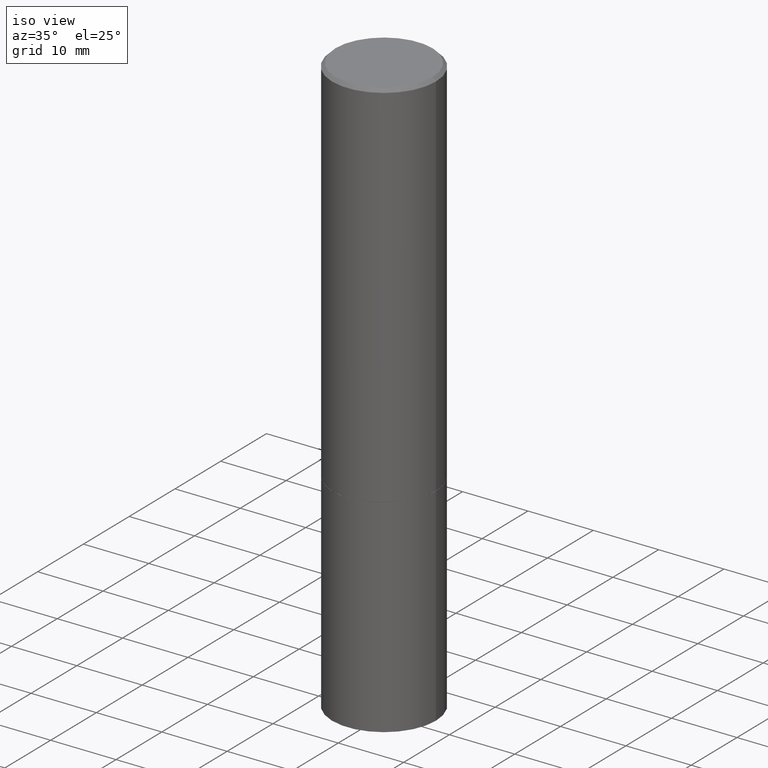
[diagram: clean part render]
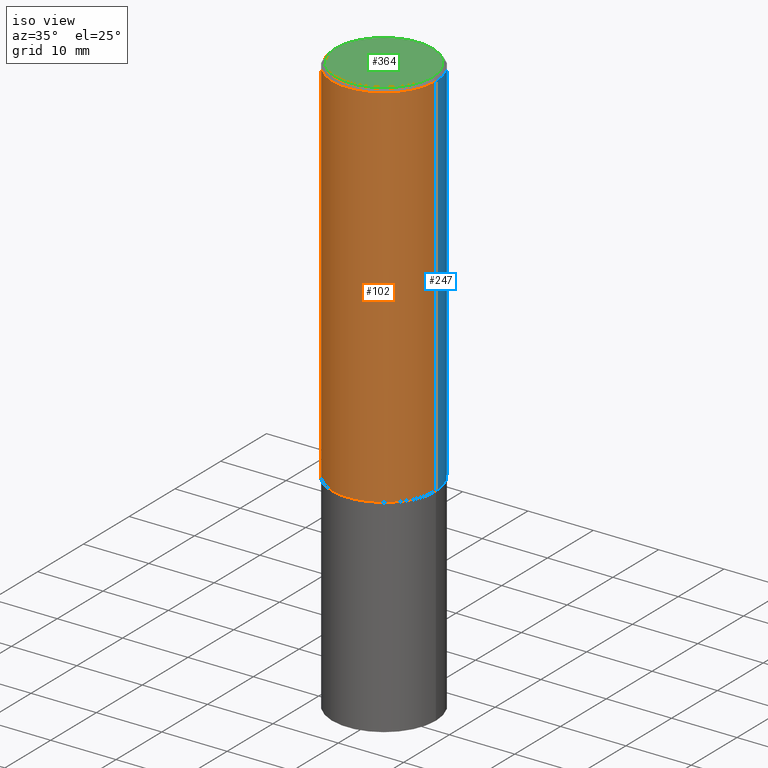
[diagram: same view with three faces highlighted in distinct colors, each labeled with its STEP entity id]
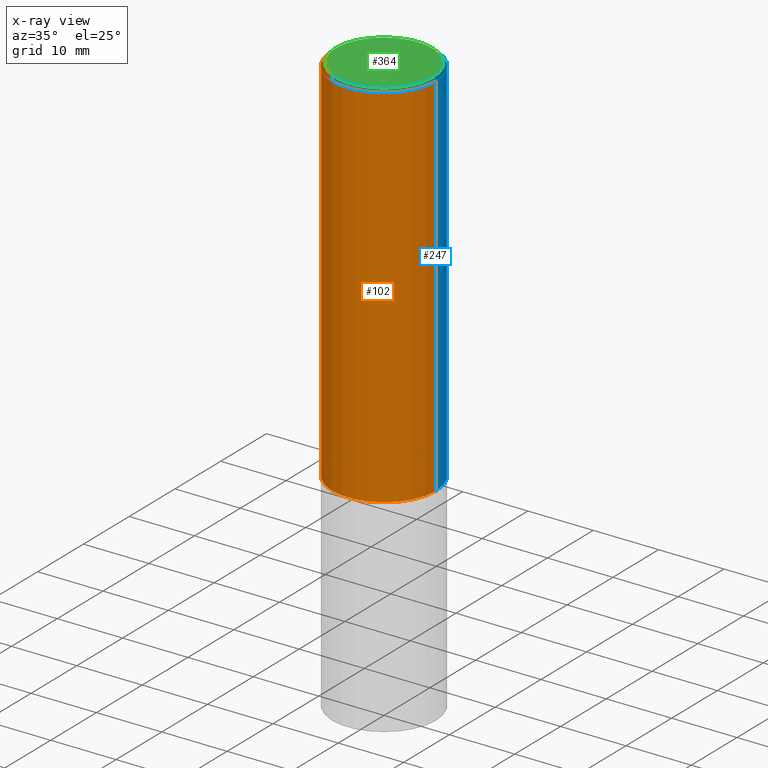
[diagram: x-ray of the same camera — body ghosted, the three highlighted faces saturated]
A machine part, iso view with three faces highlighted in distinct colors.
The next image is the same camera in x-ray (body ghosted, the three faces saturated) — at least one of them is partly hidden behind the body in this view.
Their STEP definitions:

[orange] entity #102 — the highlighted cylindrical surface (partial cylindrical patch) has radius 7.9375 mm, axis along (-0, 0, 1).
#13 = CARTESIAN_POINT ( 'NONE',  ( -0.3124999999999998890, 2.220446049250312292E-15, -1.537167215704657391E-29 ) ) ;
#16 = AXIS2_PLACEMENT_3D ( 'NONE', #283, #130, #305 ) ;
#34 = CARTESIAN_POINT ( 'NONE',  ( 5.499859345110370619E-29, -7.852341531058232286E-15, -2.248999999999999222 ) ) ;
#44 = CARTESIAN_POINT ( 'NONE',  ( 0.3124999999999998890, -2.182175836776957558E-15, 1.523805242436229235E-29 ) ) ;
#57 = EDGE_CURVE ( 'NONE', #126, #388, #228, .T. ) ;
#62 = DIRECTION ( 'NONE',  ( -2.445468806185136597E-29, 3.491481338843145583E-15, 1.000000000000000000 ) ) ;
#74 = LINE ( 'NONE', #13, #304 ) ;
#77 = ORIENTED_EDGE ( 'NONE', *, *, #211, .T. ) ;
#80 = EDGE_LOOP ( 'NONE', ( #322, #204, #77, #348 ) ) ;
#102 = ADVANCED_FACE ( 'NONE', ( #306 ), #158, .T. ) ;
#126 = VERTEX_POINT ( 'NONE', #153 ) ;
#130 = DIRECTION ( 'NONE',  ( -2.445468806185136597E-29, 3.491481338843145583E-15, 1.000000000000000000 ) ) ;
#133 = LINE ( 'NONE', #44, #243 ) ;
#135 = DIRECTION ( 'NONE',  ( -2.445468806185136597E-29, 3.491481338843145583E-15, 1.000000000000000000 ) ) ;
#140 = CARTESIAN_POINT ( 'NONE',  ( -0.3124999999999998335, 2.112346210000093866E-15, -0.02000000000000006981 ) ) ;
#146 = CARTESIAN_POINT ( 'NONE',  ( 0.3125000000000000000, -1.003451736783519063E-14, -2.248999999999999222 ) ) ;
#153 = CARTESIAN_POINT ( 'NONE',  ( -0.3125000000000000000, -1.740639529667232739E-15, -2.248999999999999222 ) ) ;
#158 = CYLINDRICAL_SURFACE ( 'NONE', #16, 0.3124999999999998890 ) ;
#182 = AXIS2_PLACEMENT_3D ( 'NONE', #34, #62, #307 ) ;
#195 = DIRECTION ( 'NONE',  ( -2.445468806185136877E-29, 3.491481338843145188E-15, 1.000000000000000000 ) ) ;
#196 = VERTEX_POINT ( 'NONE', #224 ) ;
#201 = VERTEX_POINT ( 'NONE', #140 ) ;
#204 = ORIENTED_EDGE ( 'NONE', *, *, #57, .T. ) ;
#211 = EDGE_CURVE ( 'NONE', #388, #196, #133, .T. ) ;
#223 = EDGE_CURVE ( 'NONE', #126, #201, #74, .T. ) ;
#224 = CARTESIAN_POINT ( 'NONE',  ( 0.3124999999999998335, -2.213735251080465334E-15, -0.02000000000000006981 ) ) ;
#228 = CIRCLE ( 'NONE', #182, 0.3125000000000000000 ) ;
#243 = VECTOR ( 'NONE', #323, 39.37007874015748143 ) ;
#283 = CARTESIAN_POINT ( 'NONE',  ( 0.000000000000000000, 0.000000000000000000, 0.000000000000000000 ) ) ;
#291 = CARTESIAN_POINT ( 'NONE',  ( 4.890937612370289799E-31, -6.982962677686315028E-17, -0.02000000000000006981 ) ) ;
#304 = VECTOR ( 'NONE', #195, 39.37007874015748143 ) ;
#305 = DIRECTION ( 'NONE',  ( 1.000000000000000000, -6.982962677686266711E-15, 4.876176775795935232E-29 ) ) ;
#306 = FACE_OUTER_BOUND ( 'NONE', #80, .T. ) ;
#307 = DIRECTION ( 'NONE',  ( 1.000000000000000000, -6.982962677686269077E-15, 0.000000000000000000 ) ) ;
#311 = AXIS2_PLACEMENT_3D ( 'NONE', #291, #135, #352 ) ;
#317 = EDGE_CURVE ( 'NONE', #201, #196, #368, .T. ) ;
#322 = ORIENTED_EDGE ( 'NONE', *, *, #223, .F. ) ;
#323 = DIRECTION ( 'NONE',  ( -2.445468806185136877E-29, 3.491481338843145188E-15, 1.000000000000000000 ) ) ;
#348 = ORIENTED_EDGE ( 'NONE', *, *, #317, .F. ) ;
#352 = DIRECTION ( 'NONE',  ( 1.000000000000000000, -6.982962677686265133E-15, 0.000000000000000000 ) ) ;
#368 = CIRCLE ( 'NONE', #311, 0.3124999999999998335 ) ;
#388 = VERTEX_POINT ( 'NONE', #146 ) ;

[blue] entity #247 — the highlighted cylindrical surface (partial cylindrical patch) has radius 7.9375 mm, axis along (-0, 0, 1).
#10 = AXIS2_PLACEMENT_3D ( 'NONE', #362, #41, #334 ) ;
#13 = CARTESIAN_POINT ( 'NONE',  ( -0.3124999999999998890, 2.220446049250312292E-15, -1.537167215704657391E-29 ) ) ;
#15 = FACE_OUTER_BOUND ( 'NONE', #327, .T. ) ;
#18 = CARTESIAN_POINT ( 'NONE',  ( 0.000000000000000000, 0.000000000000000000, 0.000000000000000000 ) ) ;
#33 = EDGE_CURVE ( 'NONE', #196, #201, #96, .T. ) ;
#41 = DIRECTION ( 'NONE',  ( -2.445468806185136597E-29, 3.491481338843145583E-15, 1.000000000000000000 ) ) ;
#44 = CARTESIAN_POINT ( 'NONE',  ( 0.3124999999999998890, -2.182175836776957558E-15, 1.523805242436229235E-29 ) ) ;
#46 = DIRECTION ( 'NONE',  ( 1.000000000000000000, -6.982962677686269077E-15, 0.000000000000000000 ) ) ;
#74 = LINE ( 'NONE', #13, #304 ) ;
#96 = CIRCLE ( 'NONE', #10, 0.3124999999999998335 ) ;
#107 = DIRECTION ( 'NONE',  ( -2.445468806185136597E-29, 3.491481338843145583E-15, 1.000000000000000000 ) ) ;
#126 = VERTEX_POINT ( 'NONE', #153 ) ;
#133 = LINE ( 'NONE', #44, #243 ) ;
#140 = CARTESIAN_POINT ( 'NONE',  ( -0.3124999999999998335, 2.112346210000093866E-15, -0.02000000000000006981 ) ) ;
#146 = CARTESIAN_POINT ( 'NONE',  ( 0.3125000000000000000, -1.003451736783519063E-14, -2.248999999999999222 ) ) ;
#153 = CARTESIAN_POINT ( 'NONE',  ( -0.3125000000000000000, -1.740639529667232739E-15, -2.248999999999999222 ) ) ;
#195 = DIRECTION ( 'NONE',  ( -2.445468806185136877E-29, 3.491481338843145188E-15, 1.000000000000000000 ) ) ;
#196 = VERTEX_POINT ( 'NONE', #224 ) ;
#201 = VERTEX_POINT ( 'NONE', #140 ) ;
#211 = EDGE_CURVE ( 'NONE', #388, #196, #133, .T. ) ;
#213 = AXIS2_PLACEMENT_3D ( 'NONE', #375, #262, #46 ) ;
#223 = EDGE_CURVE ( 'NONE', #126, #201, #74, .T. ) ;
#224 = CARTESIAN_POINT ( 'NONE',  ( 0.3124999999999998335, -2.213735251080465334E-15, -0.02000000000000006981 ) ) ;
#236 = ORIENTED_EDGE ( 'NONE', *, *, #33, .F. ) ;
#243 = VECTOR ( 'NONE', #323, 39.37007874015748143 ) ;
#247 = ADVANCED_FACE ( 'NONE', ( #15 ), #294, .T. ) ;
#262 = DIRECTION ( 'NONE',  ( -2.445468806185136597E-29, 3.491481338843145583E-15, 1.000000000000000000 ) ) ;
#268 = ORIENTED_EDGE ( 'NONE', *, *, #211, .F. ) ;
#275 = EDGE_CURVE ( 'NONE', #388, #126, #290, .T. ) ;
#278 = ORIENTED_EDGE ( 'NONE', *, *, #223, .T. ) ;
#290 = CIRCLE ( 'NONE', #213, 0.3125000000000000000 ) ;
#294 = CYLINDRICAL_SURFACE ( 'NONE', #335, 0.3124999999999998890 ) ;
#304 = VECTOR ( 'NONE', #195, 39.37007874015748143 ) ;
#316 = DIRECTION ( 'NONE',  ( 1.000000000000000000, -6.982962677686266711E-15, 4.876176775795935232E-29 ) ) ;
#323 = DIRECTION ( 'NONE',  ( -2.445468806185136877E-29, 3.491481338843145188E-15, 1.000000000000000000 ) ) ;
#327 = EDGE_LOOP ( 'NONE', ( #339, #278, #236, #268 ) ) ;
#334 = DIRECTION ( 'NONE',  ( 1.000000000000000000, -6.982962677686265133E-15, 0.000000000000000000 ) ) ;
#335 = AXIS2_PLACEMENT_3D ( 'NONE', #18, #107, #316 ) ;
#339 = ORIENTED_EDGE ( 'NONE', *, *, #275, .T. ) ;
#362 = CARTESIAN_POINT ( 'NONE',  ( 4.890937612370289799E-31, -6.982962677686315028E-17, -0.02000000000000006981 ) ) ;
#375 = CARTESIAN_POINT ( 'NONE',  ( 5.499859345110370619E-29, -7.852341531058232286E-15, -2.248999999999999222 ) ) ;
#388 = VERTEX_POINT ( 'NONE', #146 ) ;

[green] entity #364 — the highlighted planar face has unit normal (0, -0, -1).
#21 = DIRECTION ( 'NONE',  ( 2.438088387897960049E-29, -3.491481338843145188E-15, -1.000000000000000000 ) ) ;
#29 = PLANE ( 'NONE',  #178 ) ;
#31 = AXIS2_PLACEMENT_3D ( 'NONE', #162, #197, #259 ) ;
#53 = ORIENTED_EDGE ( 'NONE', *, *, #170, .T. ) ;
#55 = DIRECTION ( 'NONE',  ( -1.000000000000000000, 6.982962677686265922E-15, -4.876176775795935793E-29 ) ) ;
#58 = CARTESIAN_POINT ( 'NONE',  ( -0.2924999999999997602, 2.077431396611662611E-15, 4.268512490086005323E-18 ) ) ;
#59 = EDGE_LOOP ( 'NONE', ( #301, #53 ) ) ;
#64 = CARTESIAN_POINT ( 'NONE',  ( -1.043851414335219820E-46, 1.490343170380447200E-32, 4.268512490100411279E-18 ) ) ;
#69 = EDGE_CURVE ( 'NONE', #386, #176, #318, .T. ) ;
#150 = AXIS2_PLACEMENT_3D ( 'NONE', #64, #215, #337 ) ;
#162 = CARTESIAN_POINT ( 'NONE',  ( -1.043851414335219820E-46, 1.490343170380447200E-32, 4.268512490100411279E-18 ) ) ;
#170 = EDGE_CURVE ( 'NONE', #176, #386, #219, .T. ) ;
#176 = VERTEX_POINT ( 'NONE', #222 ) ;
#178 = AXIS2_PLACEMENT_3D ( 'NONE', #230, #21, #55 ) ;
#197 = DIRECTION ( 'NONE',  ( -2.445468806185136597E-29, 3.491481338843145583E-15, 1.000000000000000000 ) ) ;
#215 = DIRECTION ( 'NONE',  ( -2.445468806185136597E-29, 3.491481338843145583E-15, 1.000000000000000000 ) ) ;
#219 = CIRCLE ( 'NONE', #31, 0.2924999999999997602 ) ;
#222 = CARTESIAN_POINT ( 'NONE',  ( 0.2924999999999997602, -2.110215457714318353E-15, 4.268512490114932791E-18 ) ) ;
#230 = CARTESIAN_POINT ( 'NONE',  ( 2.042516583223231356E-15, 0.2924999999999997602, -1.019124035366569212E-15 ) ) ;
#233 = FACE_OUTER_BOUND ( 'NONE', #59, .T. ) ;
#259 = DIRECTION ( 'NONE',  ( 1.000000000000000000, -6.982962677686266711E-15, 4.876067333457693400E-29 ) ) ;
#301 = ORIENTED_EDGE ( 'NONE', *, *, #69, .T. ) ;
#318 = CIRCLE ( 'NONE', #150, 0.2924999999999997602 ) ;
#337 = DIRECTION ( 'NONE',  ( 1.000000000000000000, -6.982962677686266711E-15, 4.876067333457693400E-29 ) ) ;
#364 = ADVANCED_FACE ( 'NONE', ( #233 ), #29, .F. ) ;
#386 = VERTEX_POINT ( 'NONE', #58 ) ;